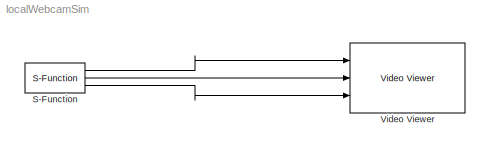
MODEL localWebcamSim
KIND model
BLOCK [S-Function] S-Function
  EnableBusSupport = off
  FunctionName = localPicOut
  Parameters = 320 240 320 240
  Ports = [0, 3]
  SID = 15
BLOCK [Reference] Video Viewer  REF=vipsnks/Video Viewer
  AxisZoom = on
  DialogControllerArgs = DataTag1
  FigPos = [549 614 560 346]
  OpenAtMdlStart = on
  Ports = [3]
  SID = 5
  SourceBlock = vipsnks/Video Viewer
  SourceType = Video Viewer
  UserData = DataTag0
  UserDataPersistent = on
  colormapValue = gray(256)
  imagePorts = Separate color signals
  inputType = Obsolete7b
  maxInputVal = 255
  minInputVal = 0
  specRange = off
  trueSizedOnce = off
  useColorMap = off
LINE S-Function:1 -> Video Viewer:1
LINE S-Function:2 -> Video Viewer:2
LINE S-Function:3 -> Video Viewer:3
